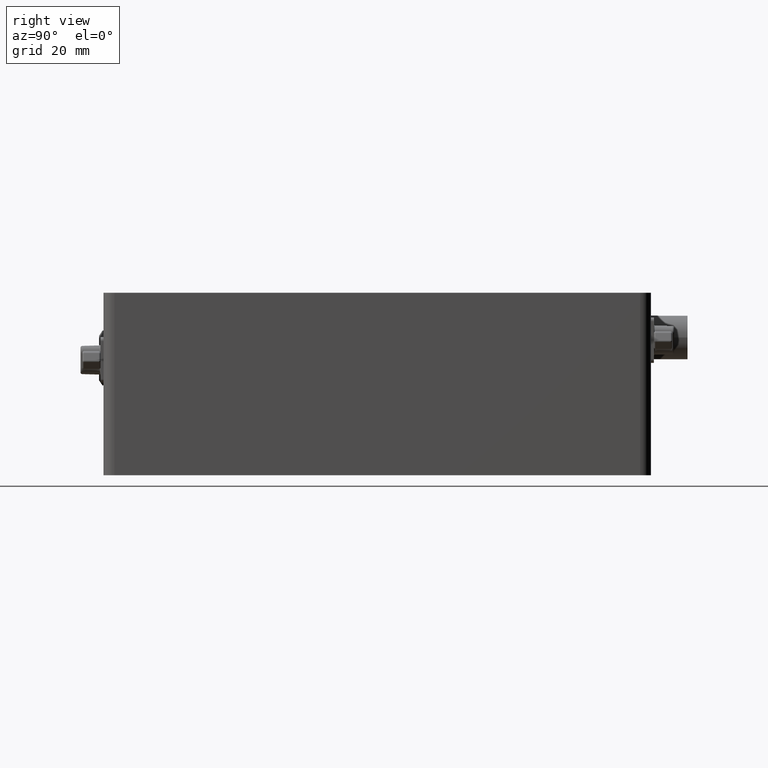
[diagram: clean part render]
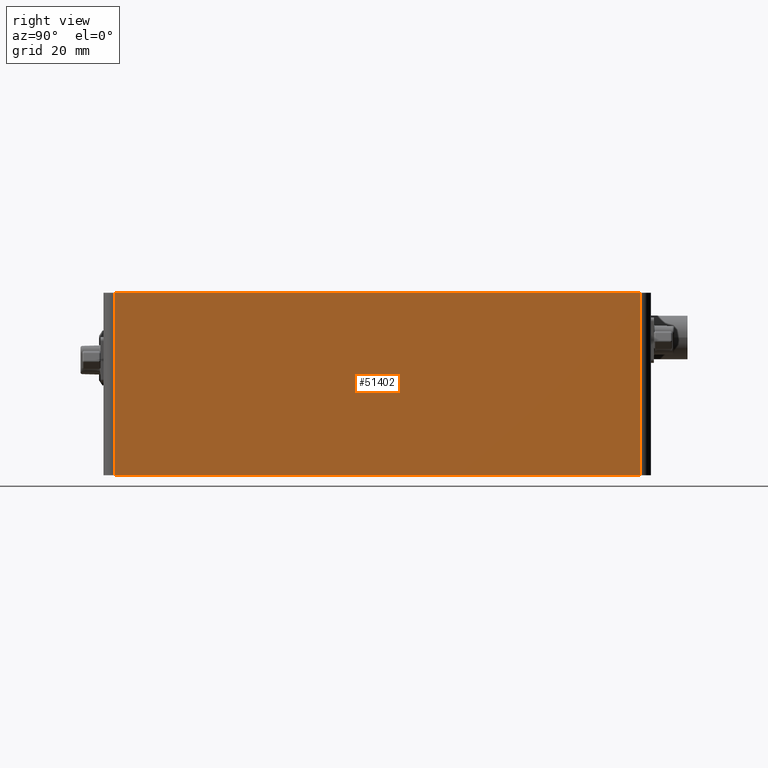
[diagram: same view with one face highlighted and labeled with its STEP entity id]
A machine part, right view. The second image highlights one B-rep face of the part: STEP entity #51402.
In plain terms, the highlighted planar face has unit normal (1, 0, 0).
Its self-contained STEP definition (entity closure, byte-faithful):
#2966 = CARTESIAN_POINT ( 'NONE',  ( 100.0000000000000000, 147.0000000000000000, -50.00000000000000000 ) ) ;
#6655 = DIRECTION ( 'NONE',  ( 0.000000000000000000, 1.000000000000000000, 0.000000000000000000 ) ) ;
#6837 = EDGE_LOOP ( 'NONE', ( #57017, #57489, #37796, #53631 ) ) ;
#7025 = VERTEX_POINT ( 'NONE', #40008 ) ;
#7791 = DIRECTION ( 'NONE',  ( 1.000000000000000000, 0.000000000000000000, 0.000000000000000000 ) ) ;
#10355 = CARTESIAN_POINT ( 'NONE',  ( 100.0000000000000000, 147.0000000000000000, 0.000000000000000000 ) ) ;
#12117 = LINE ( 'NONE', #51542, #51023 ) ;
#13713 = AXIS2_PLACEMENT_3D ( 'NONE', #47218, #7791, #6655 ) ;
#13998 = LINE ( 'NONE', #31826, #38675 ) ;
#20034 = DIRECTION ( 'NONE',  ( 0.000000000000000000, -1.000000000000000000, 0.000000000000000000 ) ) ;
#20724 = CARTESIAN_POINT ( 'NONE',  ( 100.0000000000000000, 150.0000000000000000, 0.000000000000000000 ) ) ;
#21974 = EDGE_CURVE ( 'NONE', #47827, #7025, #38802, .T. ) ;
#26912 = VECTOR ( 'NONE', #47633, 1000.000000000000000 ) ;
#27243 = EDGE_CURVE ( 'NONE', #7025, #54934, #13998, .T. ) ;
#29842 = LINE ( 'NONE', #2966, #26912 ) ;
#31826 = CARTESIAN_POINT ( 'NONE',  ( 100.0000000000000000, 3.000000000000000000, -50.00000000000000000 ) ) ;
#37796 = ORIENTED_EDGE ( 'NONE', *, *, #21974, .T. ) ;
#38675 = VECTOR ( 'NONE', #53414, 1000.000000000000000 ) ;
#38802 = LINE ( 'NONE', #20724, #51540 ) ;
#39083 = DIRECTION ( 'NONE',  ( 0.000000000000000000, -1.000000000000000000, 0.000000000000000000 ) ) ;
#39447 = CARTESIAN_POINT ( 'NONE',  ( 100.0000000000000000, 3.000000000000002665, -50.00000000000000000 ) ) ;
#39972 = CARTESIAN_POINT ( 'NONE',  ( 100.0000000000000000, 147.0000000000000000, -50.00000000000000000 ) ) ;
#40008 = CARTESIAN_POINT ( 'NONE',  ( 100.0000000000000000, 3.000000000000002665, 0.000000000000000000 ) ) ;
#42848 = FACE_OUTER_BOUND ( 'NONE', #6837, .T. ) ;
#46931 = PLANE ( 'NONE',  #13713 ) ;
#47218 = CARTESIAN_POINT ( 'NONE',  ( 100.0000000000000000, 150.0000000000000000, -50.00000000000000000 ) ) ;
#47633 = DIRECTION ( 'NONE',  ( 0.000000000000000000, 0.000000000000000000, 1.000000000000000000 ) ) ;
#47827 = VERTEX_POINT ( 'NONE', #10355 ) ;
#51023 = VECTOR ( 'NONE', #20034, 1000.000000000000000 ) ;
#51402 = ADVANCED_FACE ( 'NONE', ( #42848 ), #46931, .T. ) ;
#51540 = VECTOR ( 'NONE', #39083, 1000.000000000000000 ) ;
#51542 = CARTESIAN_POINT ( 'NONE',  ( 100.0000000000000000, 150.0000000000000000, -50.00000000000000000 ) ) ;
#51778 = EDGE_CURVE ( 'NONE', #54055, #54934, #12117, .T. ) ;
#53414 = DIRECTION ( 'NONE',  ( -0.000000000000000000, -0.000000000000000000, -1.000000000000000000 ) ) ;
#53631 = ORIENTED_EDGE ( 'NONE', *, *, #27243, .T. ) ;
#54055 = VERTEX_POINT ( 'NONE', #39972 ) ;
#54934 = VERTEX_POINT ( 'NONE', #39447 ) ;
#57017 = ORIENTED_EDGE ( 'NONE', *, *, #51778, .F. ) ;
#57228 = EDGE_CURVE ( 'NONE', #54055, #47827, #29842, .T. ) ;
#57489 = ORIENTED_EDGE ( 'NONE', *, *, #57228, .T. ) ;